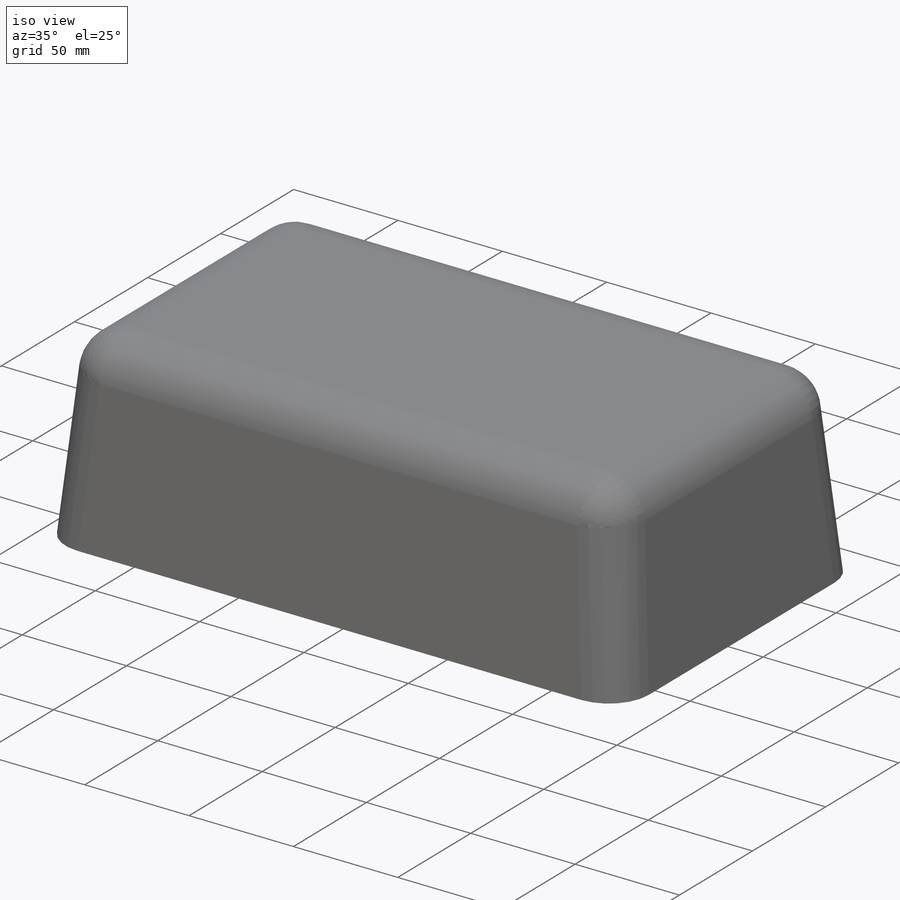
[diagram: iso view]
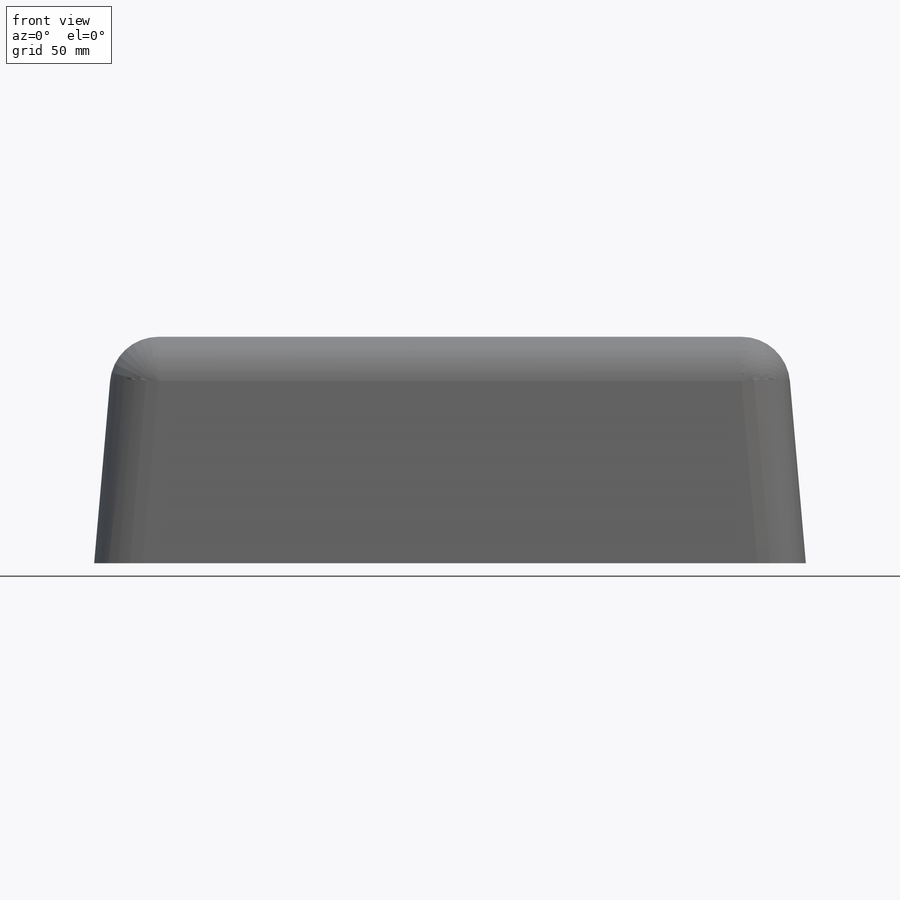
[diagram: front view]
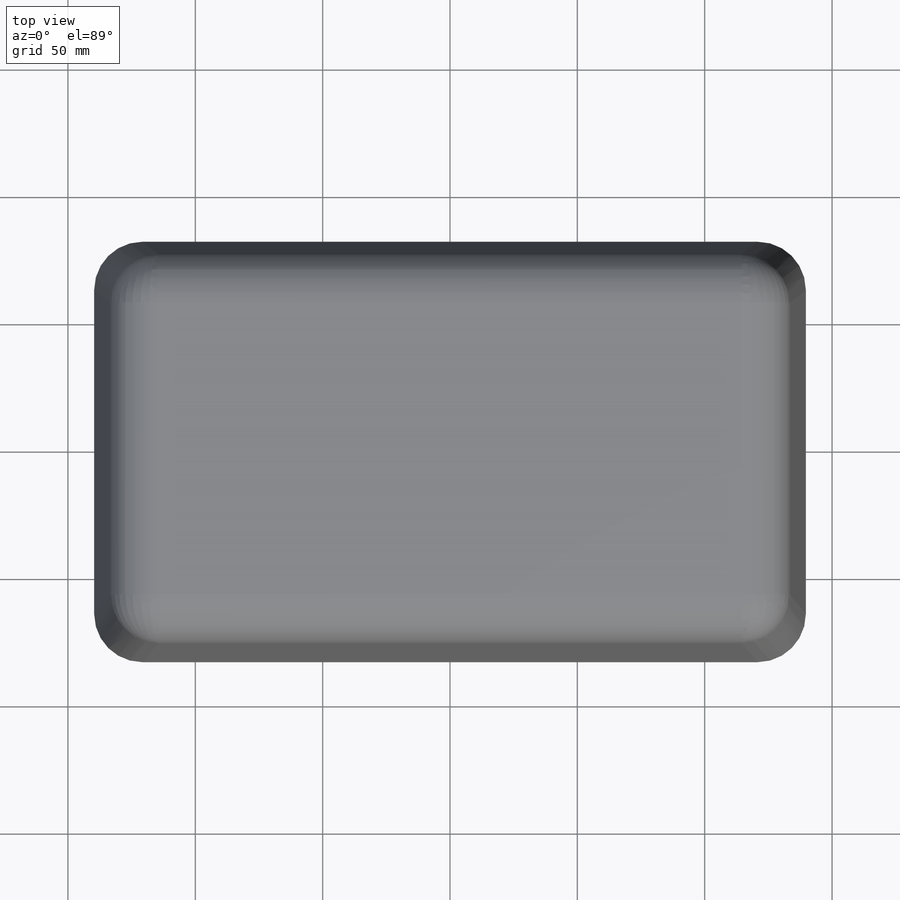
[diagram: top view]
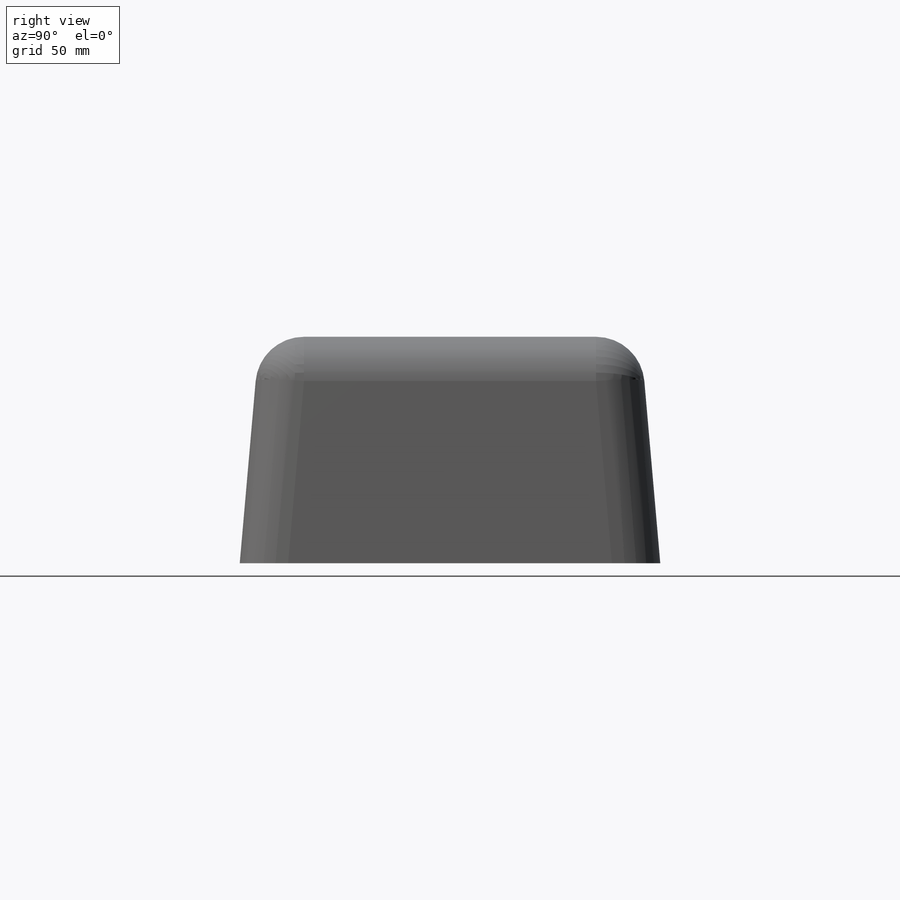
[diagram: right view]
SOLIDWORKS PART (.sldprt)
format: sldprt  version: not decoded by parser v0  size: 262,144 bytes
history: native  units: mm
features: sketch x3, fillet x2, shell x2, material x1, extrude x1 (+11 scaffold rows collapsed)
feature tree (20):
  scaffold x11  (default folders/planes/origin — collapsed)
  material  "Material <not specified>"
  sketch  "Sketch1"  dims[D1=165.1mm D2=279.4mm]
  extrude  "Boss-Extrude1"  Depth=88.9mm
  fillet  "Fillet1"  Radius=19.05mm
  fillet  "Fillet2"  Radius=19.05mm
  shell  "Shell1"  Thickness=12.7mm
  sketch  "Sketch2"  dims[D1=2.54mm D5=12.7mm D6=2.54mm D7=5.0mm]
  shell  "Extrude-Thin2"  [1 undecoded]
  sketch  "Sketch2<3>"  dims[D1=2.54mm D5=12.7mm D6=2.54mm D7=5.0mm]
decode coverage: 7 of 8 modeling features carry decoded parameters
note: 1 parameter value undecoded
note: suppression state not decoded; provenance and decode notes live in map.json
